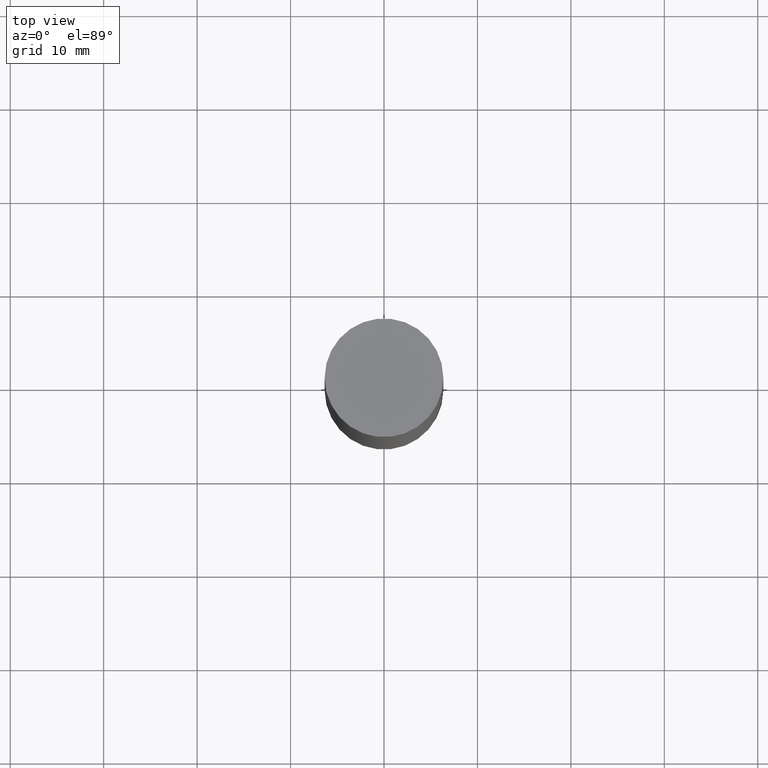
[diagram: clean part render]
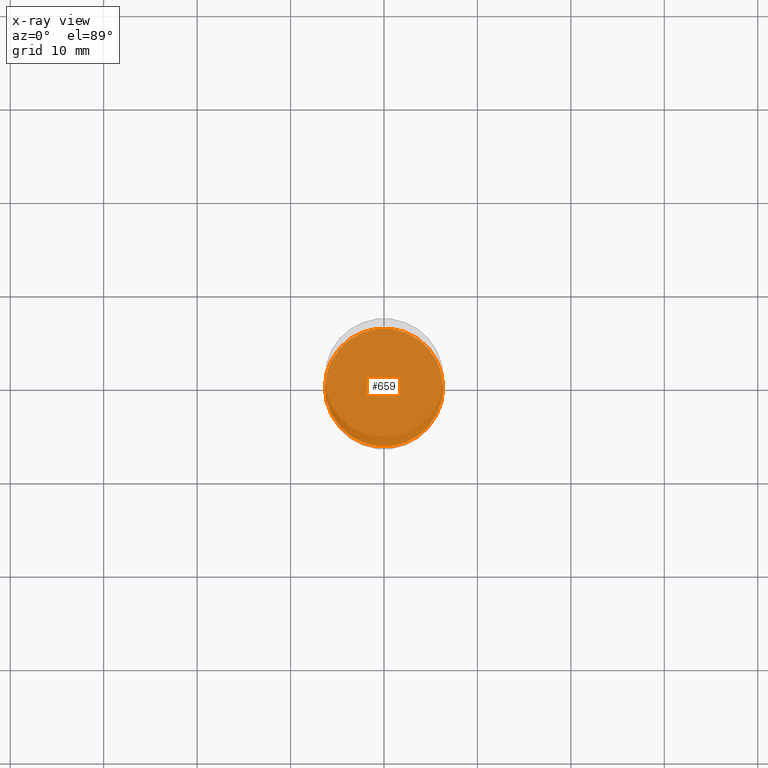
[diagram: x-ray — body ghosted, one internal face saturated and labeled with its STEP entity id]
A machine part, top view, then the same camera in x-ray: the body is ghosted and one INTERNAL B-rep face — a face not visible from any outside direction — is saturated and labeled: STEP entity #659.
In plain terms, the highlighted planar face has unit normal (-0, 0, 1).
Its self-contained STEP definition (entity closure, byte-faithful):
#7 = CARTESIAN_POINT ( 'NONE',  ( 5.807988414689700538E-29, -8.292268179752471696E-15, -2.375000000000000000 ) ) ;
#133 = CIRCLE ( 'NONE', #456, 0.2489999999999999991 ) ;
#134 = CARTESIAN_POINT ( 'NONE',  ( -0.2489999999999999991, -6.517718313361599048E-15, -2.375000000000000000 ) ) ;
#144 = AXIS2_PLACEMENT_3D ( 'NONE', #679, #634, #368 ) ;
#159 = DIRECTION ( 'NONE',  ( 1.000000000000000000, -6.982962677686269866E-15, 0.000000000000000000 ) ) ;
#172 = CIRCLE ( 'NONE', #445, 0.2489999999999999991 ) ;
#176 = CARTESIAN_POINT ( 'NONE',  ( 0.2489999999999999991, -1.003102588649635236E-14, -2.375000000000000000 ) ) ;
#181 = EDGE_CURVE ( 'NONE', #268, #307, #133, .T. ) ;
#196 = DIRECTION ( 'NONE',  ( 1.000000000000000000, -6.982962677686269866E-15, 0.000000000000000000 ) ) ;
#225 = CARTESIAN_POINT ( 'NONE',  ( 5.807988414689700538E-29, -8.292268179752471696E-15, -2.375000000000000000 ) ) ;
#268 = VERTEX_POINT ( 'NONE', #134 ) ;
#298 = EDGE_LOOP ( 'NONE', ( #591, #559 ) ) ;
#307 = VERTEX_POINT ( 'NONE', #176 ) ;
#359 = EDGE_CURVE ( 'NONE', #307, #268, #172, .T. ) ;
#368 = DIRECTION ( 'NONE',  ( 1.000000000000000000, -6.982962677686265922E-15, 4.876176775795935793E-29 ) ) ;
#378 = DIRECTION ( 'NONE',  ( -2.445468806185136597E-29, 3.491481338843145583E-15, 1.000000000000000000 ) ) ;
#445 = AXIS2_PLACEMENT_3D ( 'NONE', #225, #549, #196 ) ;
#456 = AXIS2_PLACEMENT_3D ( 'NONE', #7, #378, #159 ) ;
#474 = PLANE ( 'NONE',  #144 ) ;
#538 = FACE_OUTER_BOUND ( 'NONE', #298, .T. ) ;
#549 = DIRECTION ( 'NONE',  ( -2.445468806185136597E-29, 3.491481338843145583E-15, 1.000000000000000000 ) ) ;
#559 = ORIENTED_EDGE ( 'NONE', *, *, #181, .F. ) ;
#591 = ORIENTED_EDGE ( 'NONE', *, *, #359, .F. ) ;
#634 = DIRECTION ( 'NONE',  ( -2.438088387897960049E-29, 3.491481338843145188E-15, 1.000000000000000000 ) ) ;
#659 = ADVANCED_FACE ( 'NONE', ( #538 ), #474, .F. ) ;
#679 = CARTESIAN_POINT ( 'NONE',  ( 5.807988414689700538E-29, -8.292268179752471696E-15, -2.375000000000000000 ) ) ;